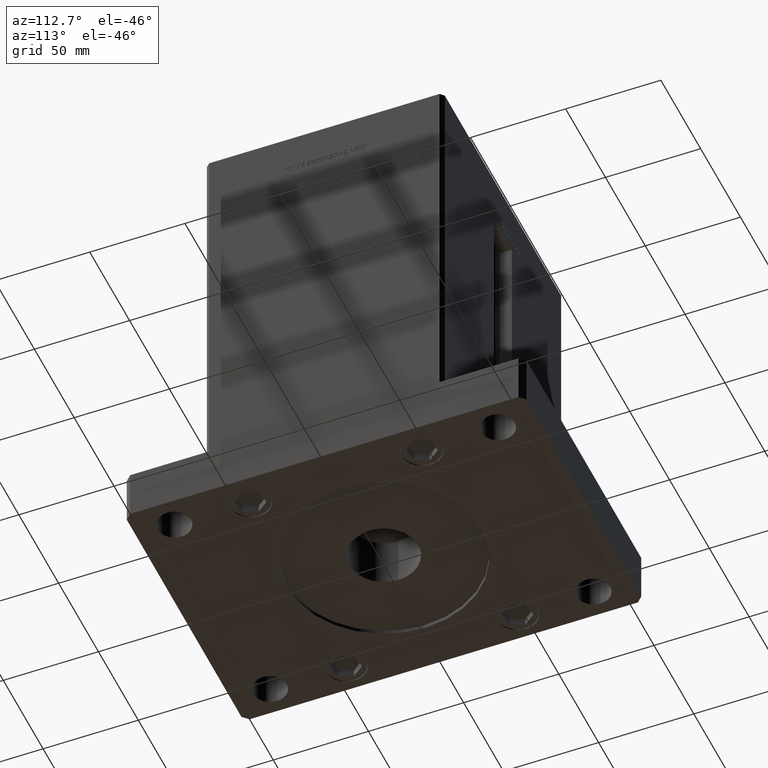
[diagram: clean part render]
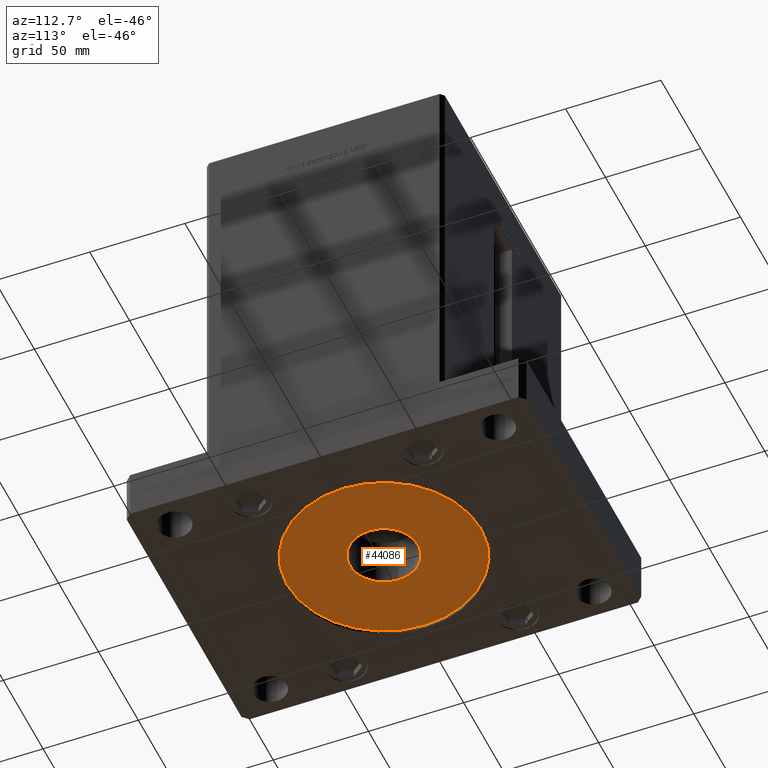
[diagram: same view with one face highlighted and labeled with its STEP entity id]
A machine part, auxiliary view. The second image highlights one B-rep face of the part: STEP entity #44086.
In plain terms, the highlighted planar face has unit normal (0, 0, -1).
Its self-contained STEP definition (entity closure, byte-faithful):
#721 = AXIS2_PLACEMENT_3D ( 'NONE', #8418, #16029, #12492 ) ;
#817 = DIRECTION ( 'NONE',  ( -1.000000000000000000, 0.000000000000000000, 0.000000000000000000 ) ) ;
#1030 = CIRCLE ( 'NONE', #40870, 18.00000000000000000 ) ;
#1064 = EDGE_CURVE ( 'NONE', #10167, #27896, #24102, .T. ) ;
#1725 = EDGE_CURVE ( 'NONE', #27896, #10167, #44087, .T. ) ;
#3186 = VERTEX_POINT ( 'NONE', #25837 ) ;
#3511 = AXIS2_PLACEMENT_3D ( 'NONE', #13988, #38936, #18326 ) ;
#4626 = DIRECTION ( 'NONE',  ( -0.000000000000000000, -0.000000000000000000, 1.000000000000000000 ) ) ;
#6743 = ORIENTED_EDGE ( 'NONE', *, *, #1064, .T. ) ;
#7285 = PLANE ( 'NONE',  #45186 ) ;
#8418 = CARTESIAN_POINT ( 'NONE',  ( 0.000000000000000000, 0.000000000000000000, 2.000000000000000000 ) ) ;
#10167 = VERTEX_POINT ( 'NONE', #22873 ) ;
#10373 = DIRECTION ( 'NONE',  ( 0.000000000000000000, 0.000000000000000000, -1.000000000000000000 ) ) ;
#10559 = EDGE_CURVE ( 'NONE', #52734, #3186, #33817, .T. ) ;
#12492 = DIRECTION ( 'NONE',  ( -1.000000000000000000, 0.000000000000000000, 0.000000000000000000 ) ) ;
#12699 = ORIENTED_EDGE ( 'NONE', *, *, #1725, .T. ) ;
#13988 = CARTESIAN_POINT ( 'NONE',  ( 0.000000000000000000, 0.000000000000000000, 2.000000000000000000 ) ) ;
#15114 = EDGE_CURVE ( 'NONE', #3186, #52734, #1030, .T. ) ;
#16029 = DIRECTION ( 'NONE',  ( 0.000000000000000000, 0.000000000000000000, -1.000000000000000000 ) ) ;
#17103 = ORIENTED_EDGE ( 'NONE', *, *, #15114, .T. ) ;
#18326 = DIRECTION ( 'NONE',  ( -1.000000000000000000, 0.000000000000000000, 0.000000000000000000 ) ) ;
#20034 = DIRECTION ( 'NONE',  ( 0.000000000000000000, 0.000000000000000000, -1.000000000000000000 ) ) ;
#20719 = AXIS2_PLACEMENT_3D ( 'NONE', #38583, #10373, #42914 ) ;
#22873 = CARTESIAN_POINT ( 'NONE',  ( 51.00000000000000000, 6.245698675651500444E-15, 2.000000000000000000 ) ) ;
#24102 = CIRCLE ( 'NONE', #721, 51.00000000000000000 ) ;
#25837 = CARTESIAN_POINT ( 'NONE',  ( -18.00000000000000000, 2.204364238465235428E-15, 2.000000000000000000 ) ) ;
#27396 = ORIENTED_EDGE ( 'NONE', *, *, #10559, .T. ) ;
#27896 = VERTEX_POINT ( 'NONE', #46046 ) ;
#31457 = CARTESIAN_POINT ( 'NONE',  ( 18.00000000000000000, 0.000000000000000000, 2.000000000000000000 ) ) ;
#32215 = CARTESIAN_POINT ( 'NONE',  ( 0.000000000000000000, 0.000000000000000000, 2.000000000000000000 ) ) ;
#33817 = CIRCLE ( 'NONE', #3511, 18.00000000000000000 ) ;
#35751 = DIRECTION ( 'NONE',  ( -1.000000000000000000, 0.000000000000000000, -0.000000000000000000 ) ) ;
#38583 = CARTESIAN_POINT ( 'NONE',  ( 0.000000000000000000, 0.000000000000000000, 2.000000000000000000 ) ) ;
#38936 = DIRECTION ( 'NONE',  ( -0.000000000000000000, -0.000000000000000000, 1.000000000000000000 ) ) ;
#40870 = AXIS2_PLACEMENT_3D ( 'NONE', #41776, #4626, #817 ) ;
#41776 = CARTESIAN_POINT ( 'NONE',  ( 0.000000000000000000, 0.000000000000000000, 2.000000000000000000 ) ) ;
#42438 = EDGE_LOOP ( 'NONE', ( #12699, #6743 ) ) ;
#42914 = DIRECTION ( 'NONE',  ( -1.000000000000000000, 0.000000000000000000, 0.000000000000000000 ) ) ;
#44086 = ADVANCED_FACE ( 'NONE', ( #52557, #48237 ), #7285, .T. ) ;
#44087 = CIRCLE ( 'NONE', #20719, 51.00000000000000000 ) ;
#45186 = AXIS2_PLACEMENT_3D ( 'NONE', #32215, #20034, #35751 ) ;
#46046 = CARTESIAN_POINT ( 'NONE',  ( -51.00000000000000000, 0.000000000000000000, 2.000000000000000000 ) ) ;
#48237 = FACE_BOUND ( 'NONE', #53213, .T. ) ;
#52557 = FACE_OUTER_BOUND ( 'NONE', #42438, .T. ) ;
#52734 = VERTEX_POINT ( 'NONE', #31457 ) ;
#53213 = EDGE_LOOP ( 'NONE', ( #27396, #17103 ) ) ;